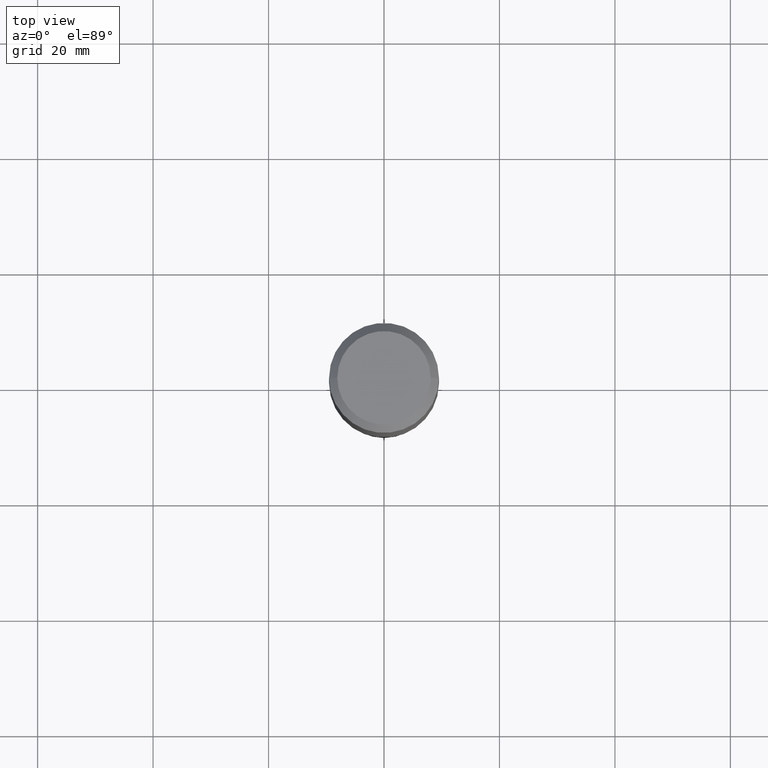
[diagram: clean part render]
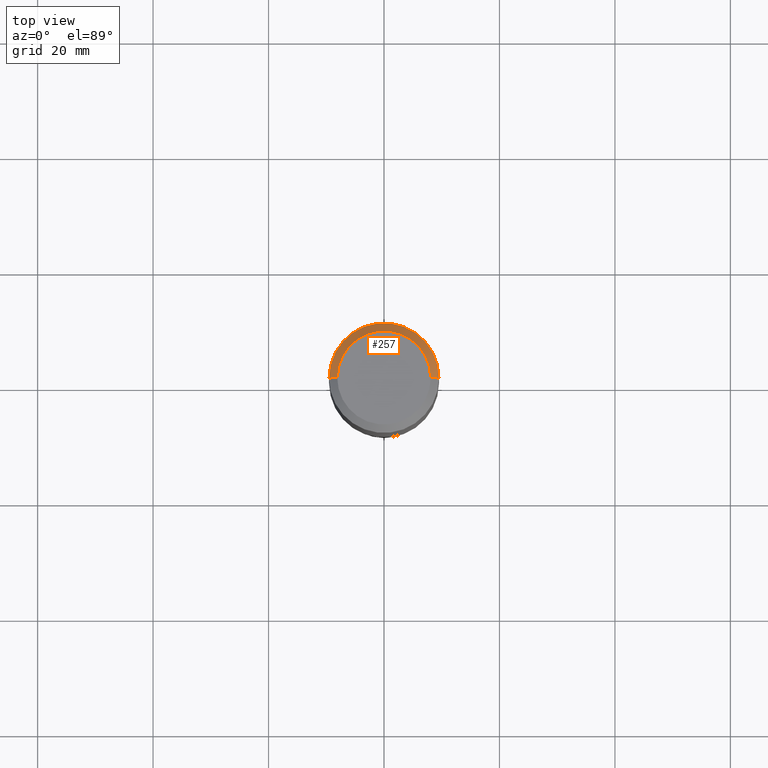
[diagram: same view with one face highlighted and labeled with its STEP entity id]
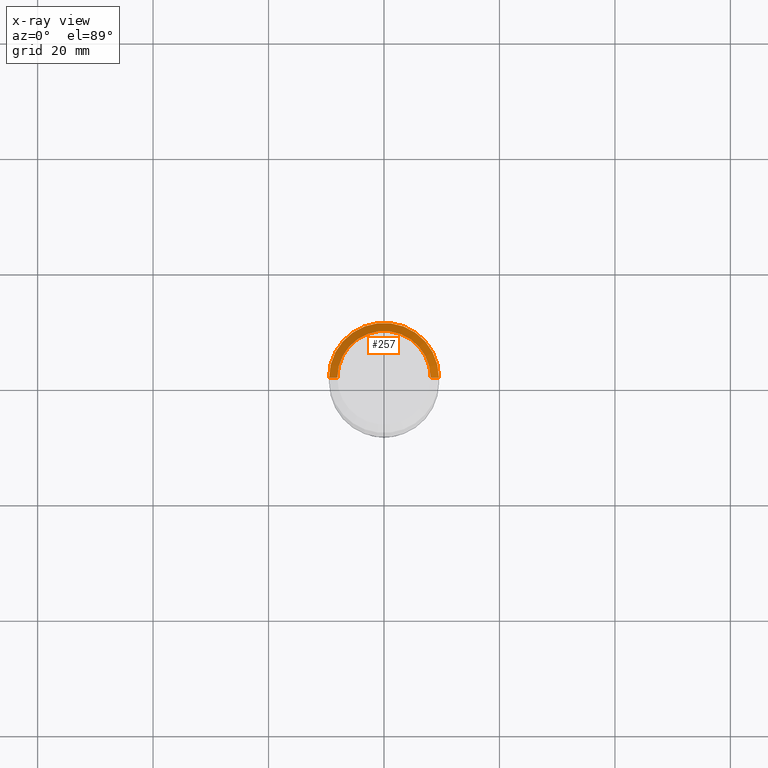
[diagram: x-ray of the same camera — body ghosted, the highlighted face saturated]
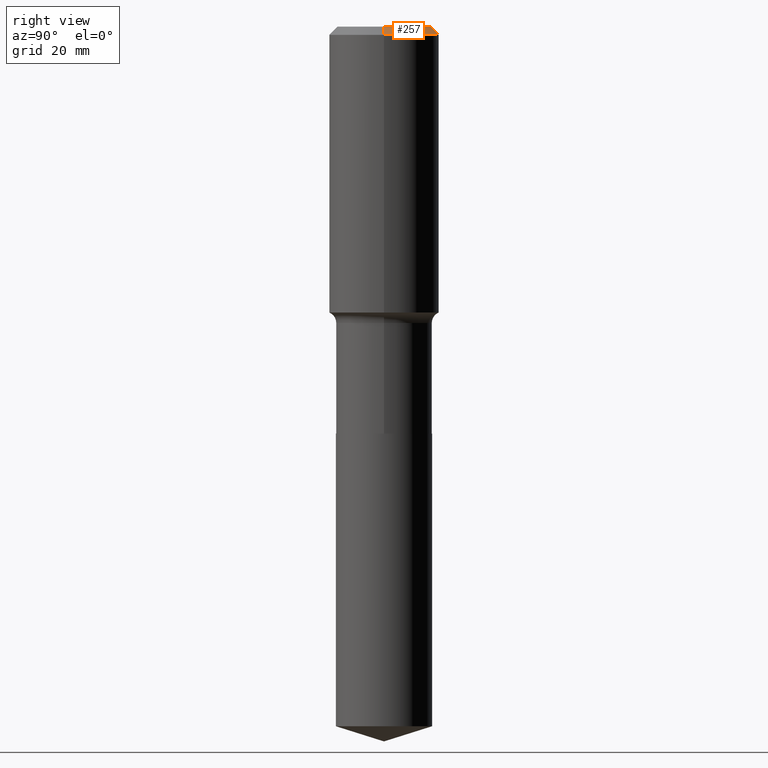
[diagram: same view with one face highlighted and labeled with its STEP entity id]
A machine part, top view. The second image highlights one B-rep face of the part: STEP entity #257.
The next image is the same camera in x-ray: the body ghosted, the highlighted face saturated — about 0% of this face is hidden behind the body in this view.
A second angle (right view) of the same face is appended — the face is thin or edge-on in the first view.
In plain terms, the highlighted conical surface has half-angle 45 deg.
Its self-contained STEP definition (entity closure, byte-faithful):
#9 = CARTESIAN_POINT ( 'NONE',  ( 0.3750000000000000555, -2.815006829442278240E-15, -0.05625000000000031364 ) ) ;
#20 = ORIENTED_EDGE ( 'NONE', *, *, #430, .T. ) ;
#22 = EDGE_LOOP ( 'NONE', ( #130, #20, #108, #420 ) ) ;
#29 = DIRECTION ( 'NONE',  ( 2.445468806185136597E-29, -3.491481338843145583E-15, -1.000000000000000000 ) ) ;
#83 = AXIS2_PLACEMENT_3D ( 'NONE', #228, #155, #195 ) ;
#84 = CARTESIAN_POINT ( 'NONE',  ( 0.3187499999999999778, -2.477933155631963807E-15, 6.505936120486766208E-18 ) ) ;
#108 = ORIENTED_EDGE ( 'NONE', *, *, #262, .T. ) ;
#130 = ORIENTED_EDGE ( 'NONE', *, *, #308, .F. ) ;
#135 = VERTEX_POINT ( 'NONE', #481 ) ;
#146 = CARTESIAN_POINT ( 'NONE',  ( 0.3750000000000000555, -2.769082574474252559E-15, -0.05625000000000031364 ) ) ;
#148 = CIRCLE ( 'NONE', #366, 0.3187499999999999778 ) ;
#155 = DIRECTION ( 'NONE',  ( -2.445468806185136597E-29, 3.491481338843145583E-15, 1.000000000000000000 ) ) ;
#157 = CARTESIAN_POINT ( 'NONE',  ( -0.3187499999999999778, 2.324017266167459654E-15, 6.505936120454410585E-18 ) ) ;
#159 = CARTESIAN_POINT ( 'NONE',  ( -0.3750000000000000555, 2.422215178822422188E-15, -0.05625000000000031364 ) ) ;
#167 = VERTEX_POINT ( 'NONE', #157 ) ;
#178 = LINE ( 'NONE', #146, #469 ) ;
#188 = FACE_OUTER_BOUND ( 'NONE', #22, .T. ) ;
#195 = DIRECTION ( 'NONE',  ( 1.000000000000000000, -6.982962677686265922E-15, 0.000000000000000000 ) ) ;
#206 = EDGE_CURVE ( 'NONE', #167, #135, #327, .T. ) ;
#212 = CARTESIAN_POINT ( 'NONE',  ( -1.591006383764331135E-46, 2.271535455632769222E-32, 6.505936120470319537E-18 ) ) ;
#228 = CARTESIAN_POINT ( 'NONE',  ( 1.375576203479146973E-30, -1.963958253099280262E-16, -0.05625000000000031364 ) ) ;
#257 = ADVANCED_FACE ( 'NONE', ( #188 ), #352, .T. ) ;
#262 = EDGE_CURVE ( 'NONE', #436, #135, #288, .T. ) ;
#288 = CIRCLE ( 'NONE', #83, 0.3750000000000000555 ) ;
#307 = AXIS2_PLACEMENT_3D ( 'NONE', #476, #29, #479 ) ;
#308 = EDGE_CURVE ( 'NONE', #490, #167, #148, .T. ) ;
#319 = VECTOR ( 'NONE', #396, 39.37007874015748143 ) ;
#327 = LINE ( 'NONE', #159, #319 ) ;
#352 = CONICAL_SURFACE ( 'NONE', #307, 0.3750000000000000555, 0.7853981633974458365 ) ;
#366 = AXIS2_PLACEMENT_3D ( 'NONE', #212, #415, #378 ) ;
#378 = DIRECTION ( 'NONE',  ( 1.000000000000000000, -6.982962677686267499E-15, 4.876227444496879000E-29 ) ) ;
#396 = DIRECTION ( 'NONE',  ( -0.7071067811865457964, 2.468850131082238917E-15, -0.7071067811865492381 ) ) ;
#415 = DIRECTION ( 'NONE',  ( -2.445468806185136597E-29, 3.491481338843145583E-15, 1.000000000000000000 ) ) ;
#420 = ORIENTED_EDGE ( 'NONE', *, *, #206, .F. ) ;
#430 = EDGE_CURVE ( 'NONE', #490, #436, #178, .T. ) ;
#436 = VERTEX_POINT ( 'NONE', #9 ) ;
#465 = DIRECTION ( 'NONE',  ( 0.7071067811865457964, -7.319954787623249734E-15, -0.7071067811865492381 ) ) ;
#469 = VECTOR ( 'NONE', #465, 39.37007874015748143 ) ;
#476 = CARTESIAN_POINT ( 'NONE',  ( 1.375576203479146973E-30, -1.963958253099280262E-16, -0.05625000000000031364 ) ) ;
#479 = DIRECTION ( 'NONE',  ( -1.000000000000000000, 6.982962677686265922E-15, 0.000000000000000000 ) ) ;
#481 = CARTESIAN_POINT ( 'NONE',  ( -0.3750000000000000555, -8.379761210789229591E-16, -0.05625000000000031364 ) ) ;
#490 = VERTEX_POINT ( 'NONE', #84 ) ;